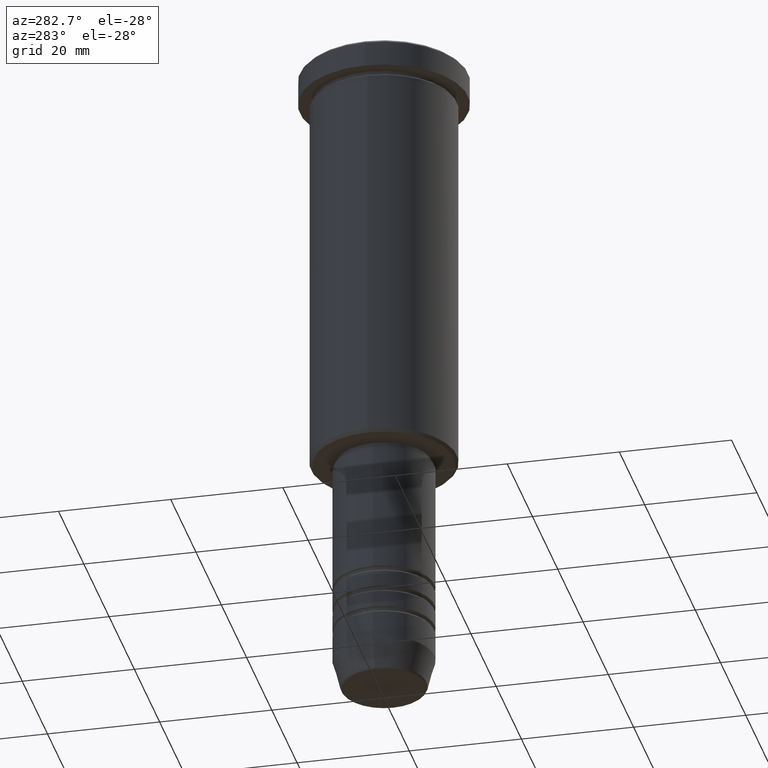
[diagram: clean part render]
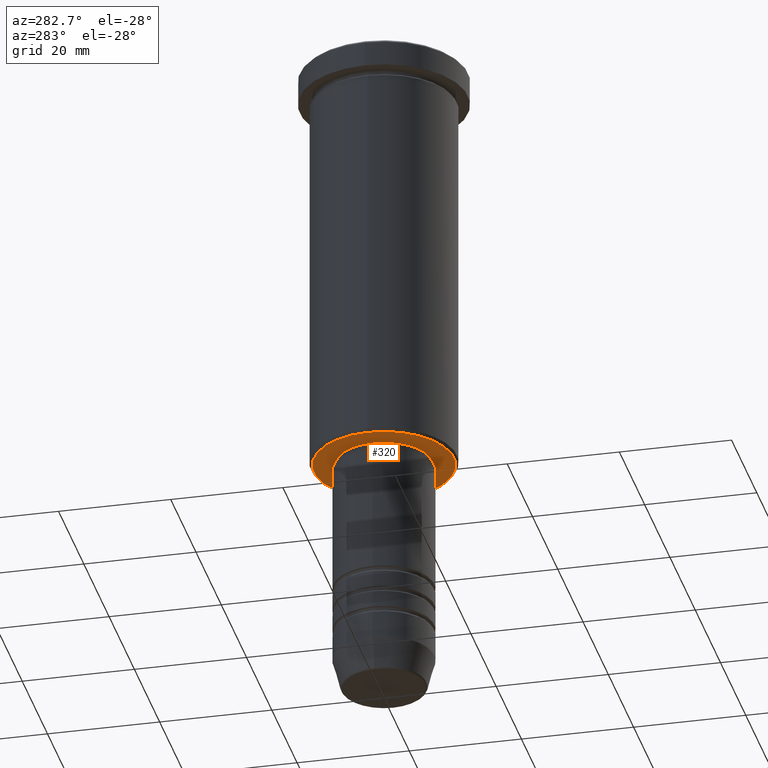
[diagram: same view with one face highlighted and labeled with its STEP entity id]
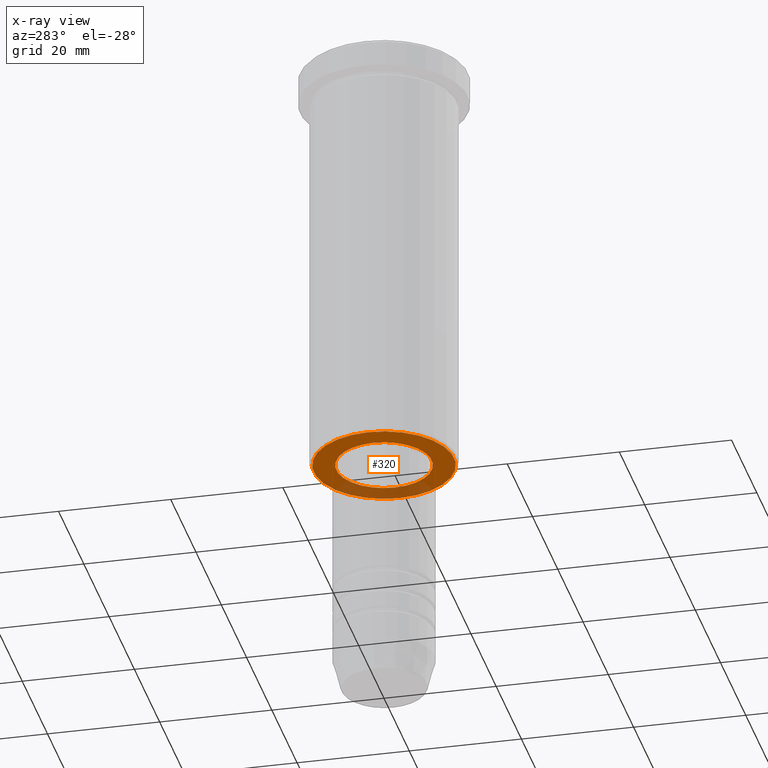
[diagram: x-ray of the same camera — body ghosted, the highlighted face saturated]
A machine part, auxiliary view. The second image highlights one B-rep face of the part: STEP entity #320.
The next image is the same camera in x-ray: the body ghosted, the highlighted face saturated — about 25% of this face is hidden behind the body in this view.
In plain terms, the highlighted planar face has unit normal (0, 0, -1).
Its self-contained STEP definition (entity closure, byte-faithful):
#20 = CARTESIAN_POINT ( 'NONE',  ( 0.000000000000000000, 0.000000000000000000, -76.00000000000001421 ) ) ;
#31 = AXIS2_PLACEMENT_3D ( 'NONE', #682, #598, #584 ) ;
#96 = DIRECTION ( 'NONE',  ( -1.000000000000000000, 0.000000000000000000, -0.000000000000000000 ) ) ;
#158 = DIRECTION ( 'NONE',  ( 1.000000000000000000, 0.000000000000000000, 0.000000000000000000 ) ) ;
#170 = EDGE_CURVE ( 'NONE', #765, #697, #836, .T. ) ;
#209 = ORIENTED_EDGE ( 'NONE', *, *, #170, .T. ) ;
#248 = EDGE_CURVE ( 'NONE', #576, #396, #985, .T. ) ;
#304 = ORIENTED_EDGE ( 'NONE', *, *, #248, .T. ) ;
#320 = ADVANCED_FACE ( 'NONE', ( #849, #822 ), #733, .T. ) ;
#326 = AXIS2_PLACEMENT_3D ( 'NONE', #972, #1063, #158 ) ;
#390 = EDGE_CURVE ( 'NONE', #697, #765, #552, .T. ) ;
#396 = VERTEX_POINT ( 'NONE', #948 ) ;
#403 = ORIENTED_EDGE ( 'NONE', *, *, #707, .T. ) ;
#417 = AXIS2_PLACEMENT_3D ( 'NONE', #868, #577, #942 ) ;
#435 = AXIS2_PLACEMENT_3D ( 'NONE', #20, #931, #833 ) ;
#507 = CARTESIAN_POINT ( 'NONE',  ( 8.500000000000000000, 0.000000000000000000, -76.00000000000001421 ) ) ;
#530 = CARTESIAN_POINT ( 'NONE',  ( -8.500000000000000000, 1.040949779275250140E-15, -76.00000000000001421 ) ) ;
#552 = CIRCLE ( 'NONE', #31, 8.500000000000000000 ) ;
#557 = DIRECTION ( 'NONE',  ( 0.000000000000000000, 0.000000000000000000, -1.000000000000000000 ) ) ;
#563 = ORIENTED_EDGE ( 'NONE', *, *, #390, .T. ) ;
#576 = VERTEX_POINT ( 'NONE', #843 ) ;
#577 = DIRECTION ( 'NONE',  ( 0.000000000000000000, 0.000000000000000000, -1.000000000000000000 ) ) ;
#584 = DIRECTION ( 'NONE',  ( 1.000000000000000000, 0.000000000000000000, 0.000000000000000000 ) ) ;
#598 = DIRECTION ( 'NONE',  ( -0.000000000000000000, -0.000000000000000000, 1.000000000000000000 ) ) ;
#682 = CARTESIAN_POINT ( 'NONE',  ( 0.000000000000000000, 0.000000000000000000, -76.00000000000001421 ) ) ;
#697 = VERTEX_POINT ( 'NONE', #507 ) ;
#707 = EDGE_CURVE ( 'NONE', #396, #576, #934, .T. ) ;
#733 = PLANE ( 'NONE',  #932 ) ;
#746 = EDGE_LOOP ( 'NONE', ( #563, #209 ) ) ;
#765 = VERTEX_POINT ( 'NONE', #530 ) ;
#822 = FACE_BOUND ( 'NONE', #746, .T. ) ;
#833 = DIRECTION ( 'NONE',  ( -1.000000000000000000, 0.000000000000000000, 0.000000000000000000 ) ) ;
#836 = CIRCLE ( 'NONE', #326, 8.500000000000000000 ) ;
#843 = CARTESIAN_POINT ( 'NONE',  ( -12.49999999999999645, 1.561424668912875308E-15, -76.00000000000001421 ) ) ;
#849 = FACE_OUTER_BOUND ( 'NONE', #870, .T. ) ;
#868 = CARTESIAN_POINT ( 'NONE',  ( 0.000000000000000000, 0.000000000000000000, -76.00000000000001421 ) ) ;
#870 = EDGE_LOOP ( 'NONE', ( #403, #304 ) ) ;
#931 = DIRECTION ( 'NONE',  ( 0.000000000000000000, 0.000000000000000000, -1.000000000000000000 ) ) ;
#932 = AXIS2_PLACEMENT_3D ( 'NONE', #1089, #557, #96 ) ;
#934 = CIRCLE ( 'NONE', #417, 12.49999999999999645 ) ;
#942 = DIRECTION ( 'NONE',  ( -1.000000000000000000, 0.000000000000000000, 0.000000000000000000 ) ) ;
#948 = CARTESIAN_POINT ( 'NONE',  ( 12.49999999999999645, 0.000000000000000000, -76.00000000000001421 ) ) ;
#972 = CARTESIAN_POINT ( 'NONE',  ( 0.000000000000000000, 0.000000000000000000, -76.00000000000001421 ) ) ;
#985 = CIRCLE ( 'NONE', #435, 12.49999999999999645 ) ;
#1063 = DIRECTION ( 'NONE',  ( -0.000000000000000000, -0.000000000000000000, 1.000000000000000000 ) ) ;
#1089 = CARTESIAN_POINT ( 'NONE',  ( 0.000000000000000000, 13.00000000000000000, -76.00000000000001421 ) ) ;